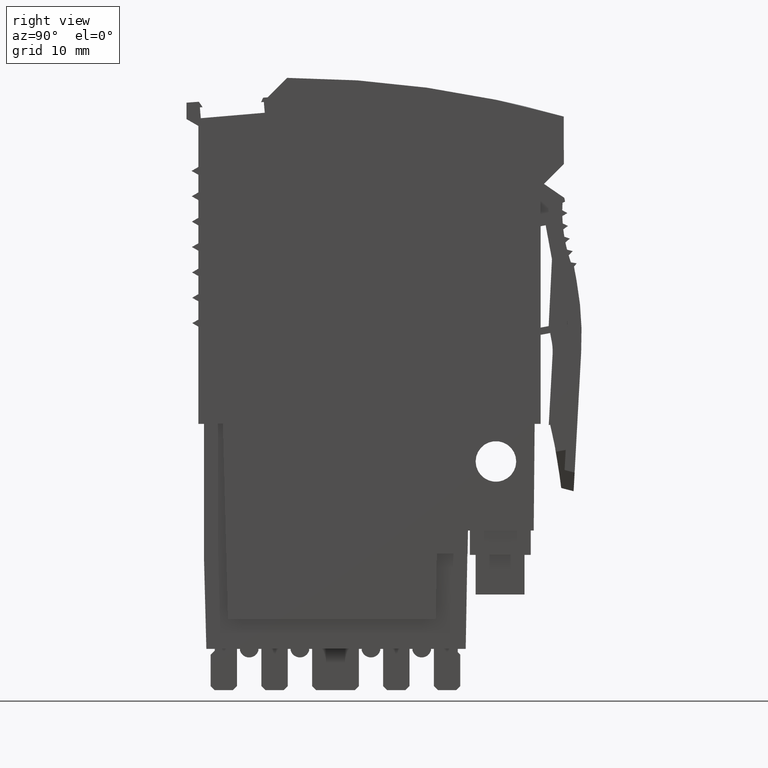
[diagram: clean part render]
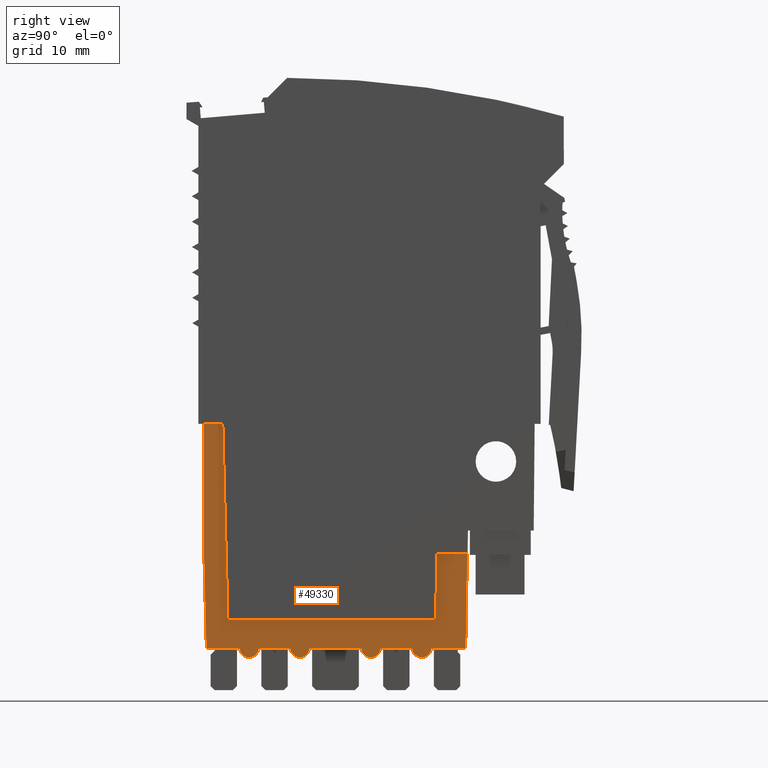
[diagram: same view with one face highlighted and labeled with its STEP entity id]
A machine part, right view. The second image highlights one B-rep face of the part: STEP entity #49330.
In plain terms, the highlighted planar face has unit normal (-1, -0, 0).
Its self-contained STEP definition (entity closure, byte-faithful):
#910=CARTESIAN_POINT('',(-29.8115513123655,58.3109668611338,
5.57500008658206));
#920=VERTEX_POINT('',#910);
#970=CARTESIAN_POINT('',(0.,58.3109707920224,5.57500008666409));
#980=DIRECTION('',(-0.999999999999991,-1.31857899599019E-7,
-2.75156962775133E-12));
#990=VECTOR('',#980,1.);
#1000=LINE('',#970,#990);
#1010=CARTESIAN_POINT('',(-31.6686648314664,58.3109666162587,
5.57500008657695));
#1020=VERTEX_POINT('',#1010);
#1030=EDGE_CURVE('',#920,#1020,#1000,.T.);
#21250=CARTESIAN_POINT('',(-8.72394622879454,45.4986348003242,
5.57500005841022));
#21260=VERTEX_POINT('',#21250);
#21290=CARTESIAN_POINT('',(-9.51812785337946,0.,5.5749999581593));
#21300=DIRECTION('',(-0.0174524064372835,-0.999847695156391,
-2.20304757249379E-9));
#21310=VECTOR('',#21300,1.);
#21320=LINE('',#21290,#21310);
#21330=CARTESIAN_POINT('',(-8.83662906666783,39.0430393421184,
5.57500004418607));
#21340=VERTEX_POINT('',#21330);
#21350=EDGE_CURVE('',#21260,#21340,#21320,.T.);
#27160=CARTESIAN_POINT('',(-5.71396938646004,45.4986345014816,
5.5750000584185));
#27170=VERTEX_POINT('',#27160);
#27200=CARTESIAN_POINT('',(0.,45.4986339341759,5.57500005843422));
#27210=DIRECTION('',(-0.999999999999995,9.92840029634401E-8,
-2.75106034466546E-12));
#27220=VECTOR('',#27210,1.);
#27230=LINE('',#27200,#27220);
#27240=EDGE_CURVE('',#27170,#21260,#27230,.T.);
#46290=CARTESIAN_POINT('',(-29.3070028735518,39.0430393421184,
5.57500004412975));
#46300=VERTEX_POINT('',#46290);
#46330=CARTESIAN_POINT('',(-28.2846249075164,0.,5.57499995810766));
#46340=DIRECTION('',(-0.0261769483078733,0.999657324975557,
2.20250808910527E-9));
#46350=VECTOR('',#46340,1.);
#46360=LINE('',#46330,#46350);
#46370=EDGE_CURVE('',#46300,#920,#46360,.T.);
#46520=CARTESIAN_POINT('',(0.,39.0430393421184,5.57500004421038));
#46530=DIRECTION('',(-1.,0.,-2.75127910060046E-12));
#46540=VECTOR('',#46530,1.);
#46550=LINE('',#46520,#46540);
#46560=EDGE_CURVE('',#21340,#46300,#46550,.T.);
#46870=CARTESIAN_POINT('',(-19.0760865656026,37.5930388259869,
5.57500004096306));
#46880=DIRECTION('',(2.75127910060046E-12,2.20333513689239E-9,-1.));
#46890=DIRECTION('',(-1.,2.78051242090887E-18,-2.75127910060045E-12));
#46900=AXIS2_PLACEMENT_3D('',#46870,#46880,#46890);
#46910=PLANE('',#46900);
#46920=CARTESIAN_POINT('',(-5.31079220445164,68.596508368943,
5.57500010931197));
#46930=DIRECTION('',(-0.0174525057061649,-0.999847693423642,
-2.20304757117532E-9));
#46940=VECTOR('',#46930,1.);
#46950=LINE('',#46920,#46940);
#46960=CARTESIAN_POINT('',(-5.87727287709538,36.1430370194483,
5.57500003780454));
#46970=VERTEX_POINT('',#46960);
#46980=EDGE_CURVE('',#27170,#46970,#46950,.T.);
#46990=ORIENTED_EDGE('',*,*,#46980,.F.);
#47000=CARTESIAN_POINT('',(-23.2950516359115,36.1430387487551,
5.57500003775662));
#47010=DIRECTION('',(-0.999999999999995,9.92840028774282E-8,
-2.75106034466837E-12));
#47020=VECTOR('',#47010,1.);
#47030=LINE('',#47000,#47020);
#47040=CARTESIAN_POINT('',(-9.30211791494323,36.1430373594806,
5.57500003779511));
#47050=VERTEX_POINT('',#47040);
#47060=EDGE_CURVE('',#46970,#47050,#47030,.T.);
#47070=ORIENTED_EDGE('',*,*,#47060,.F.);
#47080=CARTESIAN_POINT('',(-9.30211788515803,36.4430373647924,
5.57499998129273));
#47090=DIRECTION('',(-9.92840094513059E-8,-0.999999999999995,
-2.20455694226545E-9));
#47100=VECTOR('',#47090,1.);
#47110=LINE('',#47080,#47100);
#47120=CARTESIAN_POINT('',(-9.30211793203187,35.9708838134809,
5.57500003505886));
#47130=VERTEX_POINT('',#47120);
#47140=EDGE_CURVE('',#47050,#47130,#47110,.T.);
#47150=ORIENTED_EDGE('',*,*,#47140,.F.);
#47160=CARTESIAN_POINT('',(-10.2122748224206,36.2431234778907,
5.57499998320611));
#47170=DIRECTION('',(-2.58648019912443E-9,2.20455719906158E-9,-1.));
#47180=DIRECTION('',(-0.999438037785216,-0.0335202718968326,
2.51112933825857E-9));
#47190=AXIS2_PLACEMENT_3D('',#47160,#47170,#47180);
#47200=CIRCLE('',#47190,0.949999999999999);
#47210=CARTESIAN_POINT('',(-10.0122762977922,35.3144143791162,
5.57500003544845));
#47220=VERTEX_POINT('',#47210);
#47230=EDGE_CURVE('',#47130,#47220,#47200,.T.);
#47240=ORIENTED_EDGE('',*,*,#47230,.F.);
#47250=CARTESIAN_POINT('',(-10.2122748341463,36.2431234781178,
5.57500003801313));
#47260=DIRECTION('',(2.75127910060045E-12,2.20333513689239E-9,-1.));
#47270=DIRECTION('',(9.92840028635474E-8,0.999999999999995,
2.20333513716553E-9));
#47280=AXIS2_PLACEMENT_3D('',#47250,#47260,#47270);
#47290=CIRCLE('',#47280,0.95);
#47300=CARTESIAN_POINT('',(-10.4122762977608,35.3144150145602,
5.57500003648304));
#47310=VERTEX_POINT('',#47300);
#47320=EDGE_CURVE('',#47220,#47310,#47290,.T.);
#47330=ORIENTED_EDGE('',*,*,#47320,.F.);
#47340=CARTESIAN_POINT('',(-10.2122748224206,36.2431234778907,
5.57499998320611));
#47350=DIRECTION('',(-2.58648019912443E-9,2.20455719906158E-9,-1.));
#47360=DIRECTION('',(-0.999438037785216,-0.0335202718968326,
2.51112933825857E-9));
#47370=AXIS2_PLACEMENT_3D('',#47340,#47350,#47360);
#47380=CIRCLE('',#47370,0.949999999999999);
#47390=CARTESIAN_POINT('',(-11.1224317668639,35.9708839941974,
5.57500003741079));
#47400=VERTEX_POINT('',#47390);
#47410=EDGE_CURVE('',#47310,#47400,#47380,.T.);
#47420=ORIENTED_EDGE('',*,*,#47410,.F.);
#47430=CARTESIAN_POINT('',(-11.1224317199866,36.4430375417151,
5.57499998600094));
#47440=DIRECTION('',(9.92840073002488E-8,0.999999999999995,
2.20455694226545E-9));
#47450=VECTOR('',#47440,1.);
#47460=LINE('',#47430,#47450);
#47470=CARTESIAN_POINT('',(-11.1224317497718,36.1430375402087,
5.57500003779011));
#47480=VERTEX_POINT('',#47470);
#47490=EDGE_CURVE('',#47400,#47480,#47460,.T.);
#47500=ORIENTED_EDGE('',*,*,#47490,.F.);
#47510=CARTESIAN_POINT('',(-23.2950516359115,36.1430387487551,
5.57500003775662));
#47520=DIRECTION('',(-0.999999999999995,9.92840028774282E-8,
-2.75106034466837E-12));
#47530=VECTOR('',#47520,1.);
#47540=LINE('',#47510,#47530);
#47550=CARTESIAN_POINT('',(-14.3021177807562,36.1430378559007,
5.57500003778136));
#47560=VERTEX_POINT('',#47550);
#47570=EDGE_CURVE('',#47480,#47560,#47540,.T.);
#47580=ORIENTED_EDGE('',*,*,#47570,.F.);
#47590=CARTESIAN_POINT('',(-14.302117750971,36.4430378570508,
5.57499999422514));
#47600=DIRECTION('',(-9.92840070851431E-8,-0.999999999999995,
-2.20455694226545E-9));
#47610=VECTOR('',#47600,1.);
#47620=LINE('',#47590,#47610);
#47630=CARTESIAN_POINT('',(-14.3021177978483,35.9708842620863,
5.57500003504511));
#47640=VERTEX_POINT('',#47630);
#47650=EDGE_CURVE('',#47560,#47640,#47620,.T.);
#47660=ORIENTED_EDGE('',*,*,#47650,.F.);
#47670=CARTESIAN_POINT('',(-15.2122748224206,36.2431234778907,
5.57499999613852));
#47680=DIRECTION('',(-2.58648019912443E-9,2.20455719906158E-9,-1.));
#47690=DIRECTION('',(-0.999438037785216,-0.0335202718968326,
2.51112933825857E-9));
#47700=AXIS2_PLACEMENT_3D('',#47670,#47680,#47690);
#47710=CIRCLE('',#47700,0.949999999999999);
#47720=CARTESIAN_POINT('',(-15.012276298362,35.3144143817458,
5.57500003595367));
#47730=VERTEX_POINT('',#47720);
#47740=EDGE_CURVE('',#47640,#47730,#47710,.T.);
#47750=ORIENTED_EDGE('',*,*,#47740,.F.);
#47760=CARTESIAN_POINT('',(-15.2122748341463,36.2431234781178,
5.57500003799938));
#47770=DIRECTION('',(2.75127910060045E-12,2.20333513689239E-9,-1.));
#47780=DIRECTION('',(9.92840028635474E-8,0.999999999999995,
2.20333513716553E-9));
#47790=AXIS2_PLACEMENT_3D('',#47760,#47770,#47780);
#47800=CIRCLE('',#47790,0.95);
#47810=CARTESIAN_POINT('',(-15.4122762977609,35.3144150145602,
5.57500003646929));
#47820=VERTEX_POINT('',#47810);
#47830=EDGE_CURVE('',#47730,#47820,#47800,.T.);
#47840=ORIENTED_EDGE('',*,*,#47830,.F.);
#47850=CARTESIAN_POINT('',(-15.2122748224206,36.2431234778907,
5.57499999613852));
#47860=DIRECTION('',(-2.58648019912443E-9,2.20455719906158E-9,-1.));
#47870=DIRECTION('',(-0.999438037785216,-0.0335202718968326,
2.51112933825857E-9));
#47880=AXIS2_PLACEMENT_3D('',#47850,#47860,#47870);
#47890=CIRCLE('',#47880,0.949999999999999);
#47900=CARTESIAN_POINT('',(-16.1224319010508,35.9708844428144,
5.57500003975331));
#47910=VERTEX_POINT('',#47900);
#47920=EDGE_CURVE('',#47820,#47910,#47890,.T.);
#47930=ORIENTED_EDGE('',*,*,#47920,.F.);
#47940=CARTESIAN_POINT('',(-16.1224318541735,36.4430380374942,
5.57499999893334));
#47950=DIRECTION('',(9.92840080357715E-8,0.999999999999995,
2.20455694226545E-9));
#47960=VECTOR('',#47950,1.);
#47970=LINE('',#47940,#47960);
#47980=CARTESIAN_POINT('',(-16.1224318839587,36.1430380366287,
5.57500003777635));
#47990=VERTEX_POINT('',#47980);
#48000=EDGE_CURVE('',#47910,#47990,#47970,.T.);
#48010=ORIENTED_EDGE('',*,*,#48000,.F.);
#48020=CARTESIAN_POINT('',(-23.2950516359115,36.1430387487551,
5.57500003775662));
#48030=DIRECTION('',(-0.999999999999995,9.92840028774282E-8,
-2.75106034466837E-12));
#48040=VECTOR('',#48030,1.);
#48050=LINE('',#48020,#48040);
#48060=CARTESIAN_POINT('',(-21.3021175928948,36.1430385508886,
5.5750000377621));
#48070=VERTEX_POINT('',#48060);
#48080=EDGE_CURVE('',#47990,#48070,#48050,.T.);
#48090=ORIENTED_EDGE('',*,*,#48080,.F.);
#48100=CARTESIAN_POINT('',(-21.3021175631096,36.4430385546621,
5.5750000123305));
#48110=DIRECTION('',(-9.92840058430811E-8,-0.999999999999995,
-2.20455694226546E-9));
#48120=VECTOR('',#48110,1.);
#48130=LINE('',#48100,#48120);
#48140=CARTESIAN_POINT('',(-21.3021176099869,35.9708848901501,
5.57500003738279));
#48150=VERTEX_POINT('',#48140);
#48160=EDGE_CURVE('',#48070,#48150,#48130,.T.);
#48170=ORIENTED_EDGE('',*,*,#48160,.F.);
#48180=CARTESIAN_POINT('',(-22.2122748224206,36.2431234778907,
5.57500001424388));
#48190=DIRECTION('',(-2.58648019912443E-9,2.20455719906158E-9,-1.));
#48200=DIRECTION('',(-1.,-9.0205620750794E-17,2.58648019912443E-9));
#48210=AXIS2_PLACEMENT_3D('',#48180,#48190,#48200);
#48220=CIRCLE('',#48210,0.949999999999999);
#48230=CARTESIAN_POINT('',(-22.0122762977923,35.3144143791162,
5.57500003541543));
#48240=VERTEX_POINT('',#48230);
#48250=EDGE_CURVE('',#48150,#48240,#48220,.T.);
#48260=ORIENTED_EDGE('',*,*,#48250,.F.);
#48270=CARTESIAN_POINT('',(-22.2122748341463,36.2431234781178,
5.57500003798012));
#48280=DIRECTION('',(2.75127910060045E-12,2.20333513689239E-9,-1.));
#48290=DIRECTION('',(9.92840028635474E-8,0.999999999999995,
2.20333513716553E-9));
#48300=AXIS2_PLACEMENT_3D('',#48270,#48280,#48290);
#48310=CIRCLE('',#48300,0.95);
#48320=CARTESIAN_POINT('',(-22.4122762977608,35.3144150145602,
5.57500003645003));
#48330=VERTEX_POINT('',#48320);
#48340=EDGE_CURVE('',#48240,#48330,#48310,.T.);
#48350=ORIENTED_EDGE('',*,*,#48340,.F.);
#48360=CARTESIAN_POINT('',(-22.2122748224206,36.2431234778907,
5.57500001424388));
#48370=DIRECTION('',(-2.58648019912443E-9,2.20455719906158E-9,-1.));
#48380=DIRECTION('',(-1.,-9.0205620750794E-17,2.58648019912443E-9));
#48390=AXIS2_PLACEMENT_3D('',#48360,#48370,#48380);
#48400=CIRCLE('',#48390,0.949999999999999);
#48410=CARTESIAN_POINT('',(-23.1293612622409,35.9952274071319,
5.57500003980564));
#48420=VERTEX_POINT('',#48410);
#48430=EDGE_CURVE('',#48330,#48420,#48400,.T.);
#48440=ORIENTED_EDGE('',*,*,#48430,.F.);
#48450=CARTESIAN_POINT('',(-21.9221130246721,0.,5.57499995812517));
#48460=DIRECTION('',(-0.0335202718968326,0.999438037785216,
2.20200472439425E-9));
#48470=VECTOR('',#48460,1.);
#48480=LINE('',#48450,#48470);
#48490=CARTESIAN_POINT('',(-23.1343187239728,36.1430387327969,
5.57500003775706));
#48500=VERTEX_POINT('',#48490);
#48510=EDGE_CURVE('',#48420,#48500,#48480,.T.);
#48520=ORIENTED_EDGE('',*,*,#48510,.F.);
#48530=CARTESIAN_POINT('',(-23.2950516359115,36.1430387487551,
5.57500003775662));
#48540=DIRECTION('',(-0.999999999999995,9.92840028774282E-8,
-2.75106034466837E-12));
#48550=VECTOR('',#48540,1.);
#48560=LINE('',#48530,#48550);
#48570=CARTESIAN_POINT('',(-26.3021174587084,36.1430390473086,
5.57500003774835));
#48580=VERTEX_POINT('',#48570);
#48590=EDGE_CURVE('',#48500,#48580,#48560,.T.);
#48600=ORIENTED_EDGE('',*,*,#48590,.F.);
#48610=CARTESIAN_POINT('',(-26.3021176722833,33.9918876465726,
5.5750000198592));
#48620=DIRECTION('',(-9.92840132885142E-8,-0.999999999999995,
-2.20455694226544E-9));
#48630=VECTOR('',#48620,1.);
#48640=LINE('',#48610,#48630);
#48650=CARTESIAN_POINT('',(-26.3021174758005,35.9708853387671,
5.57500003736903));
#48660=VERTEX_POINT('',#48650);
#48670=EDGE_CURVE('',#48580,#48660,#48640,.T.);
#48680=ORIENTED_EDGE('',*,*,#48670,.F.);
#48690=CARTESIAN_POINT('',(-27.2122748224206,36.2431234778907,
5.57500002717628));
#48700=DIRECTION('',(-2.58648019912443E-9,2.20455719906158E-9,-1.));
#48710=DIRECTION('',(-1.,-9.0205620750794E-17,2.58648019912443E-9));
#48720=AXIS2_PLACEMENT_3D('',#48690,#48700,#48710);
#48730=CIRCLE('',#48720,0.949999999999999);
#48740=CARTESIAN_POINT('',(-27.0122762977956,35.3144143791155,
5.57500003540168));
#48750=VERTEX_POINT('',#48740);
#48760=EDGE_CURVE('',#48660,#48750,#48730,.T.);
#48770=ORIENTED_EDGE('',*,*,#48760,.F.);
#48780=CARTESIAN_POINT('',(-27.2122748341463,36.2431234781178,
5.57500003796636));
#48790=DIRECTION('',(2.75127910060045E-12,2.20333513689239E-9,-1.));
#48800=DIRECTION('',(9.92840028635474E-8,0.999999999999995,
2.20333513716553E-9));
#48810=AXIS2_PLACEMENT_3D('',#48780,#48790,#48800);
#48820=CIRCLE('',#48810,0.95);
#48830=CARTESIAN_POINT('',(-27.4122762978853,35.314415014587,
5.57500003643627));
#48840=VERTEX_POINT('',#48830);
#48850=EDGE_CURVE('',#48750,#48840,#48820,.T.);
#48860=ORIENTED_EDGE('',*,*,#48850,.F.);
#48870=CARTESIAN_POINT('',(-27.2122748224206,36.2431234778907,
5.57500002717628));
#48880=DIRECTION('',(-2.58648019912443E-9,2.20455719906158E-9,-1.));
#48890=DIRECTION('',(-1.,-9.0205620750794E-17,2.58648019912443E-9));
#48900=AXIS2_PLACEMENT_3D('',#48870,#48880,#48890);
#48910=CIRCLE('',#48900,0.949999999999999);
#48920=CARTESIAN_POINT('',(-28.1224322230984,35.9708855194952,
5.5750000397203));
#48930=VERTEX_POINT('',#48920);
#48940=EDGE_CURVE('',#48840,#48930,#48910,.T.);
#48950=ORIENTED_EDGE('',*,*,#48940,.F.);
#48960=CARTESIAN_POINT('',(-28.1224321762211,36.4430392273641,
5.57500002997111));
#48970=DIRECTION('',(9.92840073280044E-8,0.999999999999995,
2.20455694226545E-9));
#48980=VECTOR('',#48970,1.);
#48990=LINE('',#48960,#48980);
#49000=CARTESIAN_POINT('',(-28.1224322060063,36.1430392280368,
5.57500003774334));
#49010=VERTEX_POINT('',#49000);
#49020=EDGE_CURVE('',#48930,#49010,#48990,.T.);
#49030=ORIENTED_EDGE('',*,*,#49020,.F.);
#49040=CARTESIAN_POINT('',(-23.2950516359115,36.1430387487551,
5.57500003775662));
#49050=DIRECTION('',(-0.999999999999995,9.92840028774282E-8,
-2.75106034466837E-12));
#49060=VECTOR('',#49050,1.);
#49070=LINE('',#49040,#49060);
#49080=CARTESIAN_POINT('',(-31.4318182500218,36.1430395566059,
5.57500003773423));
#49090=VERTEX_POINT('',#49080);
#49100=EDGE_CURVE('',#49010,#49090,#49070,.T.);
#49110=ORIENTED_EDGE('',*,*,#49100,.F.);
#49120=CARTESIAN_POINT('',(-32.281596616556,68.5947661184883,
5.57500010923392));
#49130=DIRECTION('',(-0.0261769483078734,0.999657324975557,
2.2025080888797E-9));
#49140=VECTOR('',#49130,1.);
#49150=LINE('',#49120,#49140);
#49160=CARTESIAN_POINT('',(-31.6686661333437,45.1878953084306,
5.57500005766243));
#49170=VERTEX_POINT('',#49160);
#49180=EDGE_CURVE('',#49090,#49170,#49150,.T.);
#49190=ORIENTED_EDGE('',*,*,#49180,.F.);
#49200=CARTESIAN_POINT('',(-31.6686638107403,68.6000014671297,
5.57500010924715));
#49210=DIRECTION('',(9.92052299372109E-8,0.999999999999995,
2.20333513716532E-9));
#49220=VECTOR('',#49210,1.);
#49230=LINE('',#49200,#49220);
#49240=EDGE_CURVE('',#49170,#1020,#49230,.T.);
#49250=ORIENTED_EDGE('',*,*,#49240,.F.);
#49260=ORIENTED_EDGE('',*,*,#1030,.T.);
#49270=ORIENTED_EDGE('',*,*,#46370,.T.);
#49280=ORIENTED_EDGE('',*,*,#46560,.T.);
#49290=ORIENTED_EDGE('',*,*,#21350,.T.);
#49300=ORIENTED_EDGE('',*,*,#27240,.T.);
#49310=EDGE_LOOP('',(#49300,#49290,#49280,#49270,#49260,#49250,#49190,
#49110,#49030,#48950,#48860,#48770,#48680,#48600,#48520,#48440,#48350,
#48260,#48170,#48090,#48010,#47930,#47840,#47750,#47660,#47580,#47500,
#47420,#47330,#47240,#47150,#47070,#46990));
#49320=FACE_OUTER_BOUND('',#49310,.T.);
#49330=ADVANCED_FACE('',(#49320),#46910,.F.);